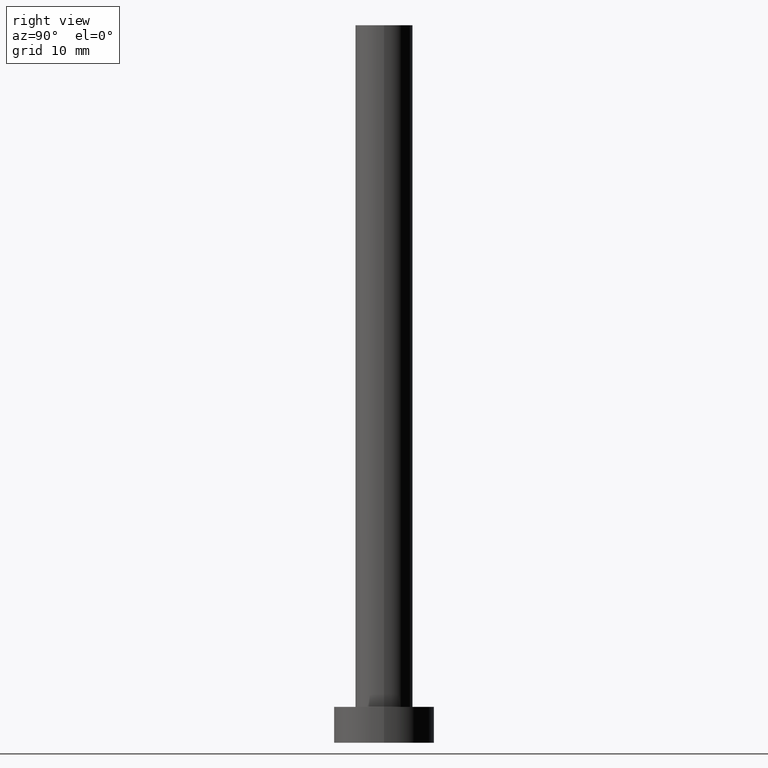
[diagram: clean part render]
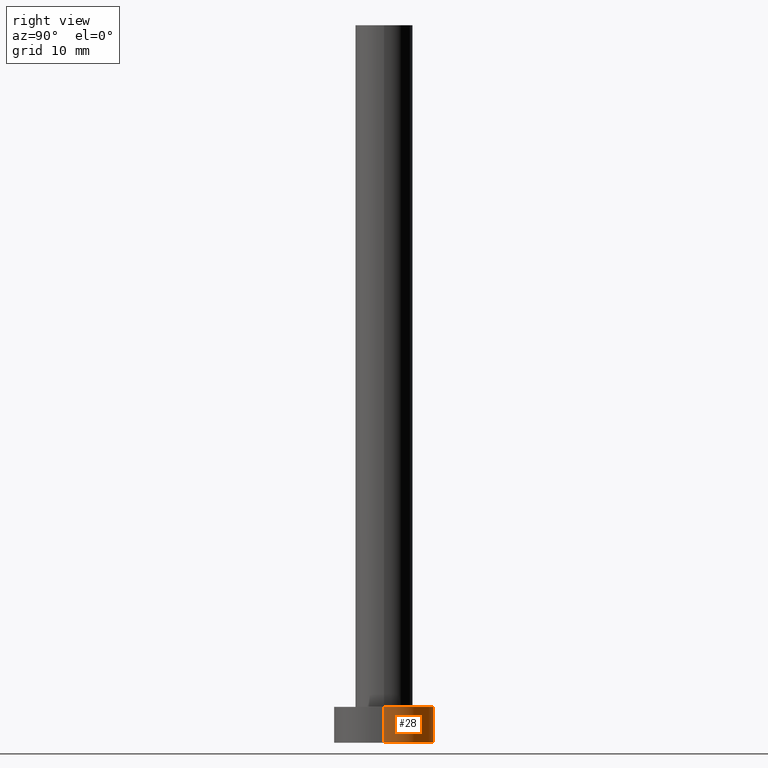
[diagram: same view with one face highlighted and labeled with its STEP entity id]
A machine part, right view. The second image highlights one B-rep face of the part: STEP entity #28.
In plain terms, the highlighted cylindrical surface (partial cylindrical patch) has radius 7 mm, axis along (-0, -0, -1).
Its self-contained STEP definition (entity closure, byte-faithful):
#2 = DIRECTION ( 'NONE',  ( -0.000000000000000000, -0.000000000000000000, -1.000000000000000000 ) ) ;
#16 = VERTEX_POINT ( 'NONE', #173 ) ;
#21 = CARTESIAN_POINT ( 'NONE',  ( 0.000000000000000000, 0.000000000000000000, 5.000000000000000000 ) ) ;
#24 = CIRCLE ( 'NONE', #157, 7.000000000000000000 ) ;
#28 = ADVANCED_FACE ( 'NONE', ( #255 ), #238, .T. ) ;
#38 = EDGE_CURVE ( 'NONE', #16, #154, #151, .T. ) ;
#43 = CARTESIAN_POINT ( 'NONE',  ( 7.000000000000000000, 8.572527594031473190E-16, 5.000000000000000000 ) ) ;
#45 = ORIENTED_EDGE ( 'NONE', *, *, #197, .T. ) ;
#64 = VECTOR ( 'NONE', #190, 1000.000000000000000 ) ;
#67 = CARTESIAN_POINT ( 'NONE',  ( 0.000000000000000000, 0.000000000000000000, 5.000000000000000000 ) ) ;
#75 = ORIENTED_EDGE ( 'NONE', *, *, #115, .F. ) ;
#96 = DIRECTION ( 'NONE',  ( -1.000000000000000000, 0.000000000000000000, 0.000000000000000000 ) ) ;
#99 = AXIS2_PLACEMENT_3D ( 'NONE', #226, #127, #167 ) ;
#103 = CARTESIAN_POINT ( 'NONE',  ( -7.000000000000000000, 0.000000000000000000, 0.000000000000000000 ) ) ;
#106 = CARTESIAN_POINT ( 'NONE',  ( 7.000000000000000000, 8.572527594031473190E-16, 5.000000000000000000 ) ) ;
#114 = CARTESIAN_POINT ( 'NONE',  ( 7.000000000000000000, 8.572527594031473190E-16, 0.000000000000000000 ) ) ;
#115 = EDGE_CURVE ( 'NONE', #122, #16, #24, .T. ) ;
#122 = VERTEX_POINT ( 'NONE', #106 ) ;
#127 = DIRECTION ( 'NONE',  ( 0.000000000000000000, 0.000000000000000000, 1.000000000000000000 ) ) ;
#130 = EDGE_CURVE ( 'NONE', #122, #227, #221, .T. ) ;
#131 = CIRCLE ( 'NONE', #99, 7.000000000000000000 ) ;
#134 = AXIS2_PLACEMENT_3D ( 'NONE', #21, #152, #96 ) ;
#139 = ORIENTED_EDGE ( 'NONE', *, *, #38, .F. ) ;
#143 = DIRECTION ( 'NONE',  ( 1.000000000000000000, 0.000000000000000000, 0.000000000000000000 ) ) ;
#148 = DIRECTION ( 'NONE',  ( 0.000000000000000000, 0.000000000000000000, 1.000000000000000000 ) ) ;
#151 = LINE ( 'NONE', #175, #155 ) ;
#152 = DIRECTION ( 'NONE',  ( -0.000000000000000000, -0.000000000000000000, -1.000000000000000000 ) ) ;
#154 = VERTEX_POINT ( 'NONE', #103 ) ;
#155 = VECTOR ( 'NONE', #2, 1000.000000000000000 ) ;
#157 = AXIS2_PLACEMENT_3D ( 'NONE', #67, #148, #143 ) ;
#158 = ORIENTED_EDGE ( 'NONE', *, *, #130, .T. ) ;
#167 = DIRECTION ( 'NONE',  ( 1.000000000000000000, 0.000000000000000000, 0.000000000000000000 ) ) ;
#173 = CARTESIAN_POINT ( 'NONE',  ( -7.000000000000000000, 0.000000000000000000, 5.000000000000000000 ) ) ;
#175 = CARTESIAN_POINT ( 'NONE',  ( -7.000000000000000000, 0.000000000000000000, 5.000000000000000000 ) ) ;
#190 = DIRECTION ( 'NONE',  ( -0.000000000000000000, -0.000000000000000000, -1.000000000000000000 ) ) ;
#196 = EDGE_LOOP ( 'NONE', ( #75, #158, #45, #139 ) ) ;
#197 = EDGE_CURVE ( 'NONE', #227, #154, #131, .T. ) ;
#221 = LINE ( 'NONE', #43, #64 ) ;
#226 = CARTESIAN_POINT ( 'NONE',  ( 0.000000000000000000, 0.000000000000000000, 0.000000000000000000 ) ) ;
#227 = VERTEX_POINT ( 'NONE', #114 ) ;
#238 = CYLINDRICAL_SURFACE ( 'NONE', #134, 7.000000000000000000 ) ;
#255 = FACE_OUTER_BOUND ( 'NONE', #196, .T. ) ;